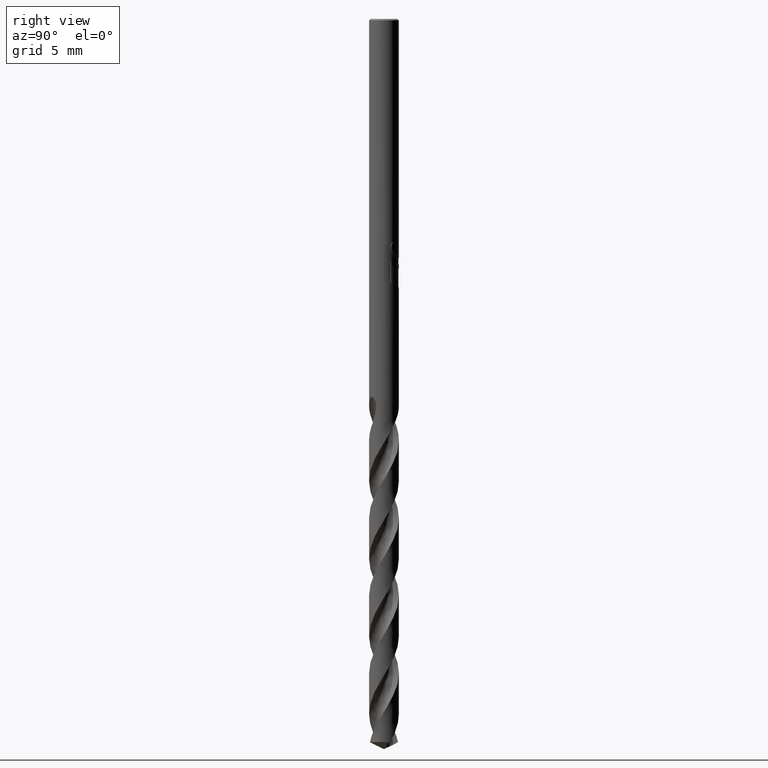
[diagram: clean part render]
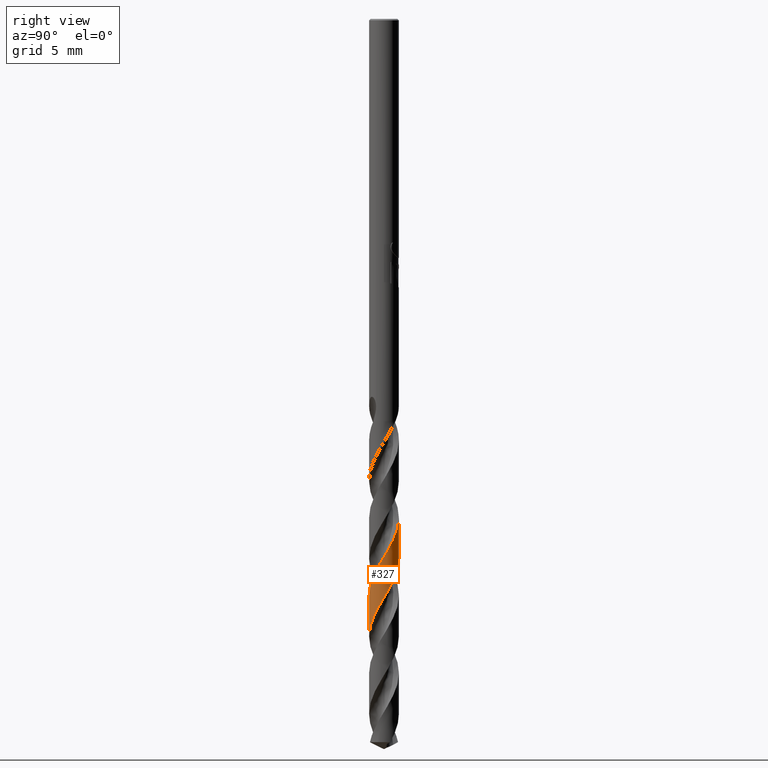
[diagram: same view with one face highlighted and labeled with its STEP entity id]
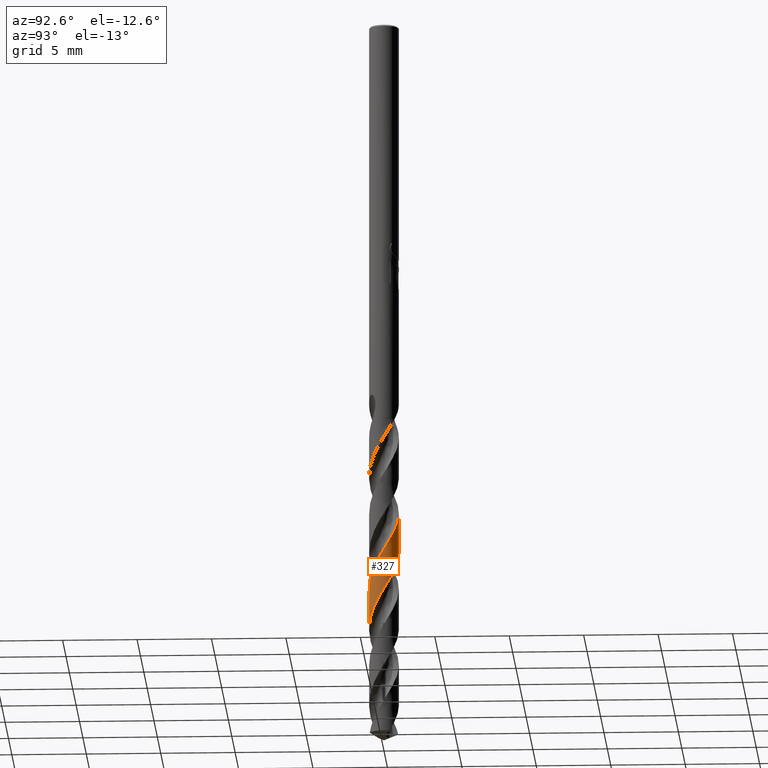
[diagram: same view with one face highlighted and labeled with its STEP entity id]
A machine part, right view. The second image highlights one B-rep face of the part: STEP entity #327.
A second angle (auxiliary view) of the same face is appended — the face is thin or edge-on in the first view.
In plain terms, the highlighted conical surface has half-angle 0 deg.
Its self-contained STEP definition (entity closure, byte-faithful):
#327=ADVANCED_FACE('',(#859),#860,.T.);
#399=EDGE_CURVE('',#481,#441,#937,.T.);
#441=VERTEX_POINT('',#985);
#481=VERTEX_POINT('',#1028);
#485=VERTEX_POINT('',#1032);
#549=VERTEX_POINT('',#1101);
#573=EDGE_CURVE('',#481,#549,#1128,.T.);
#791=EDGE_CURVE('',#485,#549,#1367,.T.);
#797=EDGE_CURVE('',#485,#441,#1374,.T.);
#859=FACE_OUTER_BOUND('',#1819,.T.);
#860=CONICAL_SURFACE('',#1820,0.99995,4.64388542437503E-006);
#937=LINE('',#2342,#2343);
#985=CARTESIAN_POINT('',(3.2694122069762E-015,0.999942858485698,-36.2290144527793));
#1028=CARTESIAN_POINT('',(1.88454613494366E-013,0.999930121111802,-33.4861875452947));
#1032=CARTESIAN_POINT('',(1.12027190284286E-013,-0.999967028578083,-41.4337277855306));
#1101=CARTESIAN_POINT('',(4.74677206223948E-014,-0.999954290792756,-38.6908122819593));
#1128=B_SPLINE_CURVE_WITH_KNOTS('',3,(#4186,#4187,#4188,#4189,#4190,#4191,#4192,#4193,#4194,#4195,#4196,#4197,#4198,#4199,#4200,#4201,#4202,#4203,#4204,#4205,#4206,#4207,#4208,#4209,#4210,#4211,#4212,#4213,#4214,#4215,#4216,#4217,#4218,#4219,#4220,#4221,#4222,#4223,#4224,#4225,#4226,#4227,#4228,#4229,#4230,#4231,#4232,#4233,#4234,#4235,#4236,#4237,#4238,#4239,#4240,#4241,#4242,#4243,#4244,#4245,#4246,#4247,#4248,#4249,#4250,#4251,#4252,#4253,#4254,#4255,#4256,#4257,#4258,#4259,#4260,#4261,#4262,#4263,#4264,#4265,#4266,#4267,#4268,#4269,#4270,#4271,#4272,#4273,#4274,#4275,#4276,#4277,#4278,#4279,#4280,#4281,#4282,#4283,#4284,#4285,#4286,#4287,#4288,#4289,#4290,#4291,#4292,#4293,#4294,#4295,#4296,#4297,#4298,#4299,#4300,#4301,#4302,#4303,#4304,#4305,#4306,#4307,#4308,#4309,#4310,#4311,#4312,#4313,#4314,#4315,#4316,#4317,#4318,#4319,#4320,#4321,#4322,#4323,#4324,#4325,#4326,#4327,#4328,#4329,#4330,#4331,#4332,#4333,#4334,#4335,#4336,#4337,#4338,#4339,#4340,#4341,#4342,#4343,#4344,#4345,#4346,#4347,#4348,#4349,#4350,#4351,#4352,#4353,#4354,#4355,#4356,#4357,#4358,#4359,#4360,#4361,#4362,#4363,#4364,#4365,#4366,#4367),.UNSPECIFIED.,.F.,.F.,(4,2,2,2,2,2,2,2,2,2,2,2,2,2,2,2,2,2,2,2,2,2,2,2,2,2,2,2,2,2,2,2,2,2,2,2,2,2,2,2,2,2,2,2,2,2,2,2,2,2,2,2,2,2,2,2,2,2,2,2,2,2,2,2,2,2,2,2,2,2,2,2,2,2,2,2,2,2,2,2,2,2,2,2,2,2,2,2,2,2,4),(0.0,0.0713269601819697,0.0905710916270879,0.0994977567872169,0.105323863655188,0.109921420017228,0.113515126888498,0.116301397942807,0.118447032461008,0.120090198578866,0.121342986047786,0.122294792274173,0.123015947930826,0.123561187768846,0.248367893880194,0.277229466000403,0.292910009426252,0.30600767386441,0.3214522607903,0.349238357147253,0.383452646727553,0.427609564093689,0.570897118002581,0.636246574252031,0.684174423014365,0.735698421260627,0.789260267415907,0.81131759972586,0.984962029096713,1.1327929267432,1.28159851667474,1.68902860159217,2.31796412075668,2.41841501877328,2.79799637534962,2.97635031193131,3.28209467517689,3.76083076906517,4.06334416147802,4.51108468915605,4.8580677405522,5.34037111158665,5.62993529641255,6.1353572860451,6.41351422486365,6.91767140706241,7.19756426958303,7.70172759885737,7.98142313784275,8.48557361905437,8.76511137406633,9.26919198997926,9.54865258065268,10.0526467283384,10.3320534478802,10.8359577158333,11.1153130844471,11.6191208680897,11.8984311714862,12.4021343470943,12.6814102313245,13.1850157703575,13.4642388941019,13.9676710014995,14.2469511321292,14.7502622132765,15.029541124386,15.5328834492971,15.8119399062421,16.3151927767869,16.5942000448546,17.0973682803001,17.3763187818692,17.8793952378738,18.1582982440663,18.6612842054288,18.9401286542909,19.4429691102117,19.7218475381376,20.2247628769457,20.503336136759,21.0054359434781,21.2848789397577,21.7887460168441,22.0663086115092,22.5663603249983,22.8452317418266,23.3462919889471,23.6403530383056,24.0780458837696,24.5261732641234),.UNSPECIFIED.);
#1367=LINE('',#8097,#8098);
#1374=B_SPLINE_CURVE_WITH_KNOTS('',3,(#8107,#8108,#8109,#8110,#8111,#8112,#8113,#8114,#8115,#8116,#8117,#8118,#8119,#8120,#8121,#8122,#8123,#8124,#8125,#8126,#8127,#8128,#8129,#8130,#8131,#8132,#8133,#8134,#8135,#8136,#8137,#8138,#8139,#8140,#8141,#8142,#8143,#8144,#8145,#8146,#8147,#8148,#8149,#8150,#8151,#8152,#8153,#8154,#8155,#8156,#8157,#8158,#8159,#8160,#8161,#8162,#8163,#8164,#8165,#8166,#8167,#8168,#8169,#8170,#8171,#8172,#8173,#8174,#8175,#8176,#8177,#8178,#8179,#8180,#8181,#8182,#8183,#8184,#8185,#8186,#8187,#8188,#8189,#8190,#8191,#8192,#8193,#8194,#8195,#8196,#8197,#8198,#8199,#8200,#8201,#8202,#8203,#8204,#8205,#8206,#8207,#8208,#8209,#8210,#8211,#8212,#8213,#8214,#8215,#8216,#8217,#8218,#8219,#8220,#8221,#8222,#8223,#8224,#8225,#8226,#8227,#8228,#8229,#8230,#8231,#8232,#8233,#8234,#8235,#8236,#8237,#8238,#8239,#8240,#8241,#8242,#8243,#8244,#8245,#8246,#8247,#8248,#8249,#8250,#8251,#8252,#8253,#8254,#8255,#8256,#8257,#8258,#8259,#8260,#8261,#8262),.UNSPECIFIED.,.F.,.F.,(4,2,2,2,2,2,2,2,2,2,2,2,2,2,2,2,2,2,2,2,2,2,2,2,2,2,2,2,2,2,2,2,2,2,2,2,2,2,2,2,2,2,2,2,2,2,2,2,2,2,2,2,2,2,2,2,2,2,2,2,2,2,2,2,2,2,2,2,2,2,2,2,2,2,2,2,2,4),(0.0,0.361337162358651,0.976261301621345,1.16450964750944,1.54466752896627,1.72683408805702,1.94261804372654,2.59464719311648,2.7780077590204,3.47848981696616,3.51889130967177,4.09321758849543,4.65649380182203,5.0211955774257,5.21316606620941,5.90264294853887,5.98616322981781,6.59712065386963,6.98105240158372,7.36536257410904,7.90099208785729,8.26598518861249,8.46778792458857,9.14374286020563,9.31837402904016,9.69555881324705,9.87951470064028,10.0951139637905,10.7567282047237,10.9417833240378,11.6539839763677,11.694043290051,12.2812228461076,12.8098366348659,13.1756983496491,13.3809290637778,14.0550604000254,14.232584978733,14.6065297668478,14.7912211419147,15.2284485220928,15.5930271580862,16.0537779938503,16.4185914419901,16.8038266224331,17.1896426989053,17.7217320149239,18.088007396766,18.2924417958026,18.9683606525162,19.1452951672735,19.5207612398612,19.705569676226,20.1399859353817,20.5047986664931,20.9671630822542,21.3322119772709,21.7177096417717,22.1039864363774,22.6419683606263,23.0088673649243,23.199937020237,23.819350677364,24.5415220028726,24.665788964548,24.7300136118964,24.871742395939,24.9503222541145,25.0588072825318,25.1229038777542,25.2113486567948,25.2584903850313,25.288374773489,25.3162249039462,25.3531633528251,25.4344278810098,25.545848208802,25.7616031512104),.UNSPECIFIED.);
#1819=EDGE_LOOP('',(#8282,#8283,#8284,#8285));
#1820=AXIS2_PLACEMENT_3D('',#8286,#8287,#8288);
#2342=CARTESIAN_POINT('',(-1.22514608352923E-016,0.99995,-37.7668461709225));
#2343=VECTOR('',#8367,1.0);
#4186=CARTESIAN_POINT('',(0.695006638995518,-0.718864262699409,-27.005));
#4187=CARTESIAN_POINT('',(0.68661385403181,-0.726978642211757,-27.025712307935));
#4188=CARTESIAN_POINT('',(0.67803769674747,-0.734987081258053,-27.046426793997));
#4189=CARTESIAN_POINT('',(0.666847238321297,-0.745067572075218,-27.0727072525305));
#4190=CARTESIAN_POINT('',(0.664454498908236,-0.747202313424329,-27.0782851910394));
#4191=CARTESIAN_POINT('',(0.660926712964626,-0.750319210762235,-27.0864464125013));
#4192=CARTESIAN_POINT('',(0.659805405505791,-0.751305463468879,-27.0890313066126));
#4193=CARTESIAN_POINT('',(0.657946222910602,-0.752933328124064,-27.0933018719904));
#4194=CARTESIAN_POINT('',(0.657210507235991,-0.753575607824298,-27.094987885474));
#4195=CARTESIAN_POINT('',(0.65589143273572,-0.75472375314161,-27.0980036739726));
#4196=CARTESIAN_POINT('',(0.655308688839857,-0.755229800316371,-27.0993335345369));
#4197=CARTESIAN_POINT('',(0.654268710059354,-0.756130791570111,-27.1017024292042));
#4198=CARTESIAN_POINT('',(0.653811866510605,-0.7565258571348,-27.1027415324557));
#4199=CARTESIAN_POINT('',(0.652999769043545,-0.757226850030646,-27.1045859836454));
#4200=CARTESIAN_POINT('',(0.652644758441122,-0.757532855974168,-27.1053913818741));
#4201=CARTESIAN_POINT('',(0.652015731311888,-0.758074282960251,-27.1068168184576));
#4202=CARTESIAN_POINT('',(0.651741863125853,-0.758309753418242,-27.1074368909009));
#4203=CARTESIAN_POINT('',(0.651257887648401,-0.758725416897336,-27.1085317188976));
#4204=CARTESIAN_POINT('',(0.651047869336969,-0.758905640236207,-27.1090064964264));
#4205=CARTESIAN_POINT('',(0.650677509316309,-0.759223190838712,-27.1098431914856));
#4206=CARTESIAN_POINT('',(0.650517220199958,-0.759360536407783,-27.1102051228512));
#4207=CARTESIAN_POINT('',(0.6502350242402,-0.759602184272677,-27.1108419944345));
#4208=CARTESIAN_POINT('',(0.650113148195714,-0.75970649741254,-27.1111169430277));
#4209=CARTESIAN_POINT('',(0.649898856995889,-0.759889818899181,-27.1116001903487));
#4210=CARTESIAN_POINT('',(0.649806459765248,-0.759968833557704,-27.111808493957));
#4211=CARTESIAN_POINT('',(0.649644162305223,-0.760107573030683,-27.1121742758672));
#4212=CARTESIAN_POINT('',(0.64957427233219,-0.760167301575835,-27.1123317572128));
#4213=CARTESIAN_POINT('',(0.63350325640473,-0.773897888389345,-27.1485361515594));
#4214=CARTESIAN_POINT('',(0.617024903934439,-0.787115942832237,-27.1837980318291));
#4215=CARTESIAN_POINT('',(0.595676487185673,-0.803116899226939,-27.227495536344));
#4216=CARTESIAN_POINT('',(0.591635165491945,-0.806098882372369,-27.2356871346763));
#4217=CARTESIAN_POINT('',(0.585344393202791,-0.810667471060172,-27.2483262730532));
#4218=CARTESIAN_POINT('',(0.583120784441458,-0.812268449955818,-27.2527726251665));
#4219=CARTESIAN_POINT('',(0.579022586006081,-0.81519355332266,-27.2609311448847));
#4220=CARTESIAN_POINT('',(0.57715139355514,-0.816519445587559,-27.2646425020813));
#4221=CARTESIAN_POINT('',(0.573060264974094,-0.81939721815624,-27.2727289819635));
#4222=CARTESIAN_POINT('',(0.570838644183973,-0.820946510526902,-27.2771024429194));
#4223=CARTESIAN_POINT('',(0.564597650482427,-0.82526115356868,-27.2893431280875));
#4224=CARTESIAN_POINT('',(0.560563521819792,-0.828006735198923,-27.2972032011297));
#4225=CARTESIAN_POINT('',(0.55151104788879,-0.83407113115344,-27.3147470233785));
#4226=CARTESIAN_POINT('',(0.54648764515258,-0.837371108791689,-27.3244189366557));
#4227=CARTESIAN_POINT('',(0.53491775742037,-0.84482326370661,-27.3465969807599));
#4228=CARTESIAN_POINT('',(0.528325200606596,-0.848962817220155,-27.3591706871165));
#4229=CARTESIAN_POINT('',(0.499800201244307,-0.8664045511247,-27.4135548726434));
#4230=CARTESIAN_POINT('',(0.477637680866647,-0.878806294695486,-27.4555530386341));
#4231=CARTESIAN_POINT('',(0.444994252730331,-0.895498072904731,-27.5165214679971));
#4232=CARTESIAN_POINT('',(0.434690015950136,-0.900544799392699,-27.5356434468558));
#4233=CARTESIAN_POINT('',(0.416700484274716,-0.908975608128091,-27.568774228562));
#4234=CARTESIAN_POINT('',(0.409043845305691,-0.912446836062991,-27.5827974222193));
#4235=CARTESIAN_POINT('',(0.393066478867106,-0.91944880927859,-27.6118848178063));
#4236=CARTESIAN_POINT('',(0.384734730733688,-0.922966367988548,-27.6269559961611));
#4237=CARTESIAN_POINT('',(0.367634766665317,-0.92991359787853,-27.6576776567945));
#4238=CARTESIAN_POINT('',(0.358859064113769,-0.933335619536552,-27.6733333368576));
#4239=CARTESIAN_POINT('',(0.346386793523603,-0.937996663791301,-27.695421319449));
#4240=CARTESIAN_POINT('',(0.342734865368048,-0.939337257471522,-27.7018703828516));
#4241=CARTESIAN_POINT('',(0.310254540532954,-0.951045565708302,-27.7590952926862));
#4242=CARTESIAN_POINT('',(0.280944835211464,-0.960114403123078,-27.8097579326065));
#4243=CARTESIAN_POINT('',(0.225942337243639,-0.974392789905163,-27.9036928981565));
#4244=CARTESIAN_POINT('',(0.200418897408153,-0.979960254313813,-27.9468437266453));
#4245=CARTESIAN_POINT('',(0.148859418103593,-0.989110976364603,-28.0335647820357));
#4246=CARTESIAN_POINT('',(0.122845909870407,-0.992676501352271,-28.0771137562336));
#4247=CARTESIAN_POINT('',(0.0252774701986015,-1.00216182889511,-28.2397617121093));
#4248=CARTESIAN_POINT('',(-0.0467565641687645,-1.00139405859593,-28.3583404228731));
#4249=CARTESIAN_POINT('',(-0.22826044211912,-0.979804565666817,-28.6612893982229));
#4250=CARTESIAN_POINT('',(-0.335513436016229,-0.948456720035634,-28.843812764857));
#4251=CARTESIAN_POINT('',(-0.451401010880476,-0.892395971904352,-29.0569619279778));
#4252=CARTESIAN_POINT('',(-0.467144408774423,-0.884256368218147,-29.0863053956189));
#4253=CARTESIAN_POINT('',(-0.541287101215247,-0.84339213975658,-29.2266513660983));
#4254=CARTESIAN_POINT('',(-0.596539195501429,-0.805262522958345,-29.3375815281084));
#4255=CARTESIAN_POINT('',(-0.671545132590101,-0.741512348517927,-29.5007123735742));
#4256=CARTESIAN_POINT('',(-0.694556872321354,-0.720004422439003,-29.5528137155175));
#4257=CARTESIAN_POINT('',(-0.754182190667601,-0.658748149963413,-29.694310201076));
#4258=CARTESIAN_POINT('',(-0.788619461674859,-0.617100801205189,-29.783417052406));
#4259=CARTESIAN_POINT('',(-0.867898535942722,-0.503696610690079,-30.0128453090115));
#4260=CARTESIAN_POINT('',(-0.907351828502397,-0.428591136037289,-30.1524191759103));
#4261=CARTESIAN_POINT('',(-0.955561278080989,-0.299313210172448,-30.3808168335681));
#4262=CARTESIAN_POINT('',(-0.970173983743438,-0.247875017228417,-30.4690203506921));
#4263=CARTESIAN_POINT('',(-0.996055150306137,-0.118092457889546,-30.6884876986749));
#4264=CARTESIAN_POINT('',(-1.00228071834755,-0.0390260257806472,-30.8191286827137));
#4265=CARTESIAN_POINT('',(-0.996667345684485,0.101232002698322,-31.0515132258921));
#4266=CARTESIAN_POINT('',(-0.988594039830041,0.162073337882402,-31.1526169367462));
#4267=CARTESIAN_POINT('',(-0.956147233797371,0.304735117735871,-31.3952455756088));
#4268=CARTESIAN_POINT('',(-0.926747514144879,0.38502233592601,-31.5358818607005));
#4269=CARTESIAN_POINT('',(-0.863923896150151,0.50606026469121,-31.7616094642389));
#4270=CARTESIAN_POINT('',(-0.83692327520317,0.549559187969704,-31.8460800627501));
#4271=CARTESIAN_POINT('',(-0.75404062382053,0.662739918657729,-32.0787091004791));
#4272=CARTESIAN_POINT('',(-0.691913757867484,0.727379542221887,-32.226069285575));
#4273=CARTESIAN_POINT('',(-0.583494218630799,0.813511696052745,-32.4552611673272));
#4274=CARTESIAN_POINT('',(-0.542833474918317,0.84118568034613,-32.5364354422419));
#4275=CARTESIAN_POINT('',(-0.423288321319923,0.910273610444257,-32.7653974298516));
#4276=CARTESIAN_POINT('',(-0.340587988108863,0.94434889072963,-32.9124209561387));
#4277=CARTESIAN_POINT('',(-0.206571945313504,0.979608249442131,-33.141792847058));
#4278=CARTESIAN_POINT('',(-0.157897352352675,0.988618938284406,-33.223485971221));
#4279=CARTESIAN_POINT('',(-0.0203130685184656,1.00367718996004,-33.4529998501041));
#4280=CARTESIAN_POINT('',(0.0691237057579506,1.00151206544744,-33.6000516313226));
#4281=CARTESIAN_POINT('',(0.205970533240288,0.979736834783418,-33.8294094771767));
#4282=CARTESIAN_POINT('',(0.254120981295556,0.968362198522043,-33.911060173703));
#4283=CARTESIAN_POINT('',(0.386087318627187,0.926674700464012,-34.1405544027071));
#4284=CARTESIAN_POINT('',(0.467072050680587,0.888626536304013,-34.2876289209363));
#4285=CARTESIAN_POINT('',(0.583517199968223,0.813523407368512,-34.5169785833891));
#4286=CARTESIAN_POINT('',(0.622979269151588,0.783711801255956,-34.5985982369398));
#4287=CARTESIAN_POINT('',(0.726927338200622,0.692367810542888,-34.8280675463587));
#4288=CARTESIAN_POINT('',(0.785701349258503,0.624895146850936,-34.9751483406847));
#4289=CARTESIAN_POINT('',(0.861982995435997,0.509218927354088,-35.2044966288995));
#4290=CARTESIAN_POINT('',(0.8860744175168,0.466031575761866,-35.2861085982211));
#4291=CARTESIAN_POINT('',(0.944372330298245,0.34053495395759,-35.5155716405657));
#4292=CARTESIAN_POINT('',(0.970955835760043,0.255092016330968,-35.662653894543));
#4293=CARTESIAN_POINT('',(0.994126654103455,0.11847847309663,-35.8920027157395));
#4294=CARTESIAN_POINT('',(0.998761692070721,0.0692440528344261,-35.9736137501029));
#4295=CARTESIAN_POINT('',(1.00151590511254,-0.0691053974111301,-36.2030763104835));
#4296=CARTESIAN_POINT('',(0.9913954827486,-0.158014807741282,-36.3501590201428));
#4297=CARTESIAN_POINT('',(0.957521598050235,-0.292376023873197,-36.5795080984473));
#4298=CARTESIAN_POINT('',(0.941913571040333,-0.339300572067074,-36.661118927593));
#4299=CARTESIAN_POINT('',(0.888656390357804,-0.467017972337992,-36.8905798093526));
#4300=CARTESIAN_POINT('',(0.843550014202077,-0.544300793965755,-37.0376610732076));
#4301=CARTESIAN_POINT('',(0.758381059931685,-0.65360234366086,-37.2670103364098));
#4302=CARTESIAN_POINT('',(0.72517856680498,-0.690252565725879,-37.3486227959841));
#4303=CARTESIAN_POINT('',(0.624950636554854,-0.78565813725618,-37.5780814969943));
#4304=CARTESIAN_POINT('',(0.552516518786696,-0.838195388190812,-37.7251590040931));
#4305=CARTESIAN_POINT('',(0.430508887300119,-0.903884197470448,-37.9545092495916));
#4306=CARTESIAN_POINT('',(0.385345493384793,-0.924039012248415,-38.0361264650544));
#4307=CARTESIAN_POINT('',(0.255157655705782,-0.970939146377756,-38.2655882097981));
#4308=CARTESIAN_POINT('',(0.167690782960404,-0.989814149973515,-38.4126639878196));
#4309=CARTESIAN_POINT('',(0.029555870352993,-1.00073840680356,-38.6420119560141));
#4310=CARTESIAN_POINT('',(-0.0198998684337635,-1.00097432639876,-38.7236286074364));
#4311=CARTESIAN_POINT('',(-0.15793233490968,-0.991407825765872,-38.9530659129656));
#4312=CARTESIAN_POINT('',(-0.245571595212108,-0.973422143133293,-39.1001182361533));
#4313=CARTESIAN_POINT('',(-0.376393467216838,-0.927732259508044,-39.3294740153561));
#4314=CARTESIAN_POINT('',(-0.421764814095414,-0.908002380233393,-39.4111220807416));
#4315=CARTESIAN_POINT('',(-0.544236830477803,-0.843589860298977,-39.6405825839698));
#4316=CARTESIAN_POINT('',(-0.617182278048314,-0.791800224681556,-39.7876265988923));
#4317=CARTESIAN_POINT('',(-0.718483475685568,-0.697243102934419,-40.0169884888255));
#4318=CARTESIAN_POINT('',(-0.752055330339136,-0.660888737658764,-40.0986510860156));
#4319=CARTESIAN_POINT('',(-0.838180636494545,-0.552540576184522,-40.3281622785925));
#4320=CARTESIAN_POINT('',(-0.884062430249606,-0.475715771959531,-40.4752417088994));
#4321=CARTESIAN_POINT('',(-0.938629414128632,-0.348345616975112,-40.7045892842172));
#4322=CARTESIAN_POINT('',(-0.954683311524273,-0.301569763284009,-40.7862019430302));
#4323=CARTESIAN_POINT('',(-0.989809703197384,-0.167723358960355,-41.0156633924273));
#4324=CARTESIAN_POINT('',(-1.00082464969021,-0.0789202801391335,-41.1627434286519));
#4325=CARTESIAN_POINT('',(-0.999409480569259,0.0596403207926915,-41.3920920293967));
#4326=CARTESIAN_POINT('',(-0.995242495028284,0.108919037267946,-41.4737051086615));
#4327=CARTESIAN_POINT('',(-0.973425260108244,0.245569351223017,-41.7031689662778));
#4328=CARTESIAN_POINT('',(-0.947702510856066,0.331277850090548,-41.8502509555123));
#4329=CARTESIAN_POINT('',(-0.890543999499203,0.457508430465675,-42.0795997244591));
#4330=CARTESIAN_POINT('',(-0.866863575608479,0.5009239701347,-42.1612110053325));
#4331=CARTESIAN_POINT('',(-0.791805695467627,0.617180064662353,-42.3906729247738));
#4332=CARTESIAN_POINT('',(-0.733711216535013,0.685244015512019,-42.5377547968876));
#4333=CARTESIAN_POINT('',(-0.630511304322532,0.77771751788772,-42.7671043547707));
#4334=CARTESIAN_POINT('',(-0.591336417875305,0.80790159488269,-42.848716543631));
#4335=CARTESIAN_POINT('',(-0.475777228728779,0.884030546844978,-43.078179622716));
#4336=CARTESIAN_POINT('',(-0.395171778733074,0.922896125875588,-43.2252617253612));
#4337=CARTESIAN_POINT('',(-0.263449121407795,0.965914008344514,-43.4546092148036));
#4338=CARTESIAN_POINT('',(-0.215431103921491,0.977742017440168,-43.5362190722323));
#4339=CARTESIAN_POINT('',(-0.0789975079176803,1.0008187229969,-43.7656639832097));
#4340=CARTESIAN_POINT('',(0.0104265636365723,1.00388944120571,-43.9127305687412));
#4341=CARTESIAN_POINT('',(0.148319139578709,0.990153841150157,-44.142087117485));
#4342=CARTESIAN_POINT('',(0.197045455926891,0.981616516648528,-44.2237217071349));
#4343=CARTESIAN_POINT('',(0.331246369919816,0.94771633658129,-44.4532403033856));
#4344=CARTESIAN_POINT('',(0.414344818707884,0.91445764560933,-44.6003547402875));
#4345=CARTESIAN_POINT('',(0.534976076218883,0.84628939253725,-44.8296854350062));
#4346=CARTESIAN_POINT('',(0.576086325419867,0.818855532116551,-44.9112458189484));
#4347=CARTESIAN_POINT('',(0.685096005628141,0.73383747897381,-45.1404774184931));
#4348=CARTESIAN_POINT('',(0.747656297059521,0.670005973779884,-45.2873833232459));
#4349=CARTESIAN_POINT('',(0.830633364833717,0.558995431158168,-45.5167720415501));
#4350=CARTESIAN_POINT('',(0.857289403994263,0.517182018244766,-45.598600595782));
#4351=CARTESIAN_POINT('',(0.922995482296829,0.394991723880156,-45.8286483186029));
#4352=CARTESIAN_POINT('',(0.954581781762304,0.31102525893201,-45.9760912465935));
#4353=CARTESIAN_POINT('',(0.985619152589755,0.175945689439511,-46.205488973661));
#4354=CARTESIAN_POINT('',(0.993077872169554,0.127252037041277,-46.2867862260859));
#4355=CARTESIAN_POINT('',(1.00385583205729,-0.0100771925438394,-46.5152028008145));
#4356=CARTESIAN_POINT('',(0.99902628139844,-0.0989892446730128,-46.6615649695789));
#4357=CARTESIAN_POINT('',(0.973303925603856,-0.234759032046376,-46.8902649473714));
#4358=CARTESIAN_POINT('',(0.960507778365458,-0.282580413757741,-46.9719482441777));
#4359=CARTESIAN_POINT('',(0.915011923721736,-0.413064520363471,-47.2010907413932));
#4360=CARTESIAN_POINT('',(0.874727209394728,-0.492690371212382,-47.3478015301833));
#4361=CARTESIAN_POINT('',(0.794886776867865,-0.608989318700799,-47.5813187054962));
#4362=CARTESIAN_POINT('',(0.762055337277263,-0.649599809696101,-47.6674894122972));
#4363=CARTESIAN_POINT('',(0.672898425290249,-0.743787270307274,-47.8824946878437));
#4364=CARTESIAN_POINT('',(0.613155352846574,-0.793769904446616,-48.010710150257));
#4365=CARTESIAN_POINT('',(0.481661672700889,-0.879957825368331,-48.2708583762053));
#4366=CARTESIAN_POINT('',(0.410274532501562,-0.915403347368213,-48.4019326123564));
#4367=CARTESIAN_POINT('',(0.335565590940084,-0.942016843892418,-48.533692341845));
#8097=CARTESIAN_POINT('',(1.22394416348014E-016,-0.99995,-37.7668461709225));
#8098=VECTOR('',#8861,1.0);
#8107=CARTESIAN_POINT('',(0.909974226507982,0.414664812940762,-48.533692341845));
#8108=CARTESIAN_POINT('',(0.884089494360212,0.471467223037622,-48.4306843882466));
#8109=CARTESIAN_POINT('',(0.853053246550382,0.525462362805797,-48.3268818714906));
#8110=CARTESIAN_POINT('',(0.756972308534247,0.661838188784407,-48.0490514679632));
#8111=CARTESIAN_POINT('',(0.683280620848955,0.737696812678099,-47.8775501043395));
#8112=CARTESIAN_POINT('',(0.573214396989906,0.820033516434332,-47.6493926017337));
#8113=CARTESIAN_POINT('',(0.546546819828017,0.838042470181231,-47.5957418752028));
#8114=CARTESIAN_POINT('',(0.463421864928407,0.88851580325021,-47.4342683069033));
#8115=CARTESIAN_POINT('',(0.404571039337679,0.916827937610988,-47.3270545420463));
#8116=CARTESIAN_POINT('',(0.313866438639934,0.949975737600897,-47.1675850046423));
#8117=CARTESIAN_POINT('',(0.284035193109548,0.95931443188844,-47.1159879301751));
#8118=CARTESIAN_POINT('',(0.218113610382269,0.976615566688474,-47.003018920271));
#8119=CARTESIAN_POINT('',(0.181961647464726,0.983985421889499,-46.9415125625582));
#8120=CARTESIAN_POINT('',(0.0356541784824296,1.00551352499258,-46.695535587964));
#8121=CARTESIAN_POINT('',(-0.0761688677625725,1.00326049694881,-46.5146005183886));
#8122=CARTESIAN_POINT('',(-0.216094545665403,0.976861825159557,-46.2781262547053));
#8123=CARTESIAN_POINT('',(-0.246452994326141,0.969646611243719,-46.2260504875078));
#8124=CARTESIAN_POINT('',(-0.391102968955657,0.928032876624254,-45.9759093129329));
#8125=CARTESIAN_POINT('',(-0.498726596448284,0.87487170260708,-45.7823696084837));
#8126=CARTESIAN_POINT('',(-0.599916917719322,0.800074544502787,-45.5727158962679));
#8127=CARTESIAN_POINT('',(-0.605380911198789,0.795948122492984,-45.5612919354364));
#8128=CARTESIAN_POINT('',(-0.68803121889452,0.732185310949256,-45.3873430468558));
#8129=CARTESIAN_POINT('',(-0.756271528320299,0.661531242212716,-45.2274402732479));
#8130=CARTESIAN_POINT('',(-0.869197680326105,0.503683164455298,-44.9064543024846));
#8131=CARTESIAN_POINT('',(-0.913550659929552,0.417900733402677,-44.746712000429));
#8132=CARTESIAN_POINT('',(-0.96536683243489,0.268155552322625,-44.4849566784987));
#8133=CARTESIAN_POINT('',(-0.980153374278453,0.207633223367262,-44.382721744009));
#8134=CARTESIAN_POINT('',(-0.994005104904793,0.11393319746018,-44.2255084744531));
#8135=CARTESIAN_POINT('',(-0.997187222452249,0.0814830925091862,-44.1711011115523));
#8136=CARTESIAN_POINT('',(-1.00450869778642,-0.0679956222031826,-43.9223316534729));
#8137=CARTESIAN_POINT('',(-0.989663446260882,-0.184864603007192,-43.7322128706781));
#8138=CARTESIAN_POINT('',(-0.950825078018388,-0.309976446229569,-43.5141555123556));
#8139=CARTESIAN_POINT('',(-0.946351802472142,-0.323375519054434,-43.4905802802541));
#8140=CARTESIAN_POINT('',(-0.906726656143309,-0.434184513682184,-43.2946526796291));
#8141=CARTESIAN_POINT('',(-0.856914595691953,-0.525762635407979,-43.1254171576909));
#8142=CARTESIAN_POINT('',(-0.754088857977702,-0.659965045249723,-42.8453690561629));
#8143=CARTESIAN_POINT('',(-0.709478315106673,-0.707706436019383,-42.7366318617825));
#8144=CARTESIAN_POINT('',(-0.611396366588224,-0.793982845440065,-42.520364774783));
#8145=CARTESIAN_POINT('',(-0.558214821309155,-0.832233511453268,-42.412975965935));
#8146=CARTESIAN_POINT('',(-0.422851392261031,-0.910735043769739,-42.1541046408079));
#8147=CARTESIAN_POINT('',(-0.338182395760909,-0.945457444870473,-42.0025562941367));
#8148=CARTESIAN_POINT('',(-0.189697569655275,-0.9837754477903,-41.7491842677896));
#8149=CARTESIAN_POINT('',(-0.128290187581763,-0.993638488733188,-41.6471408238945));
#8150=CARTESIAN_POINT('',(-0.0322763248892489,-1.00003329353809,-41.4875286492331));
#8151=CARTESIAN_POINT('',(0.0019180145352977,-1.00054777135822,-41.4304855061674));
#8152=CARTESIAN_POINT('',(0.150313333307237,-0.995195522326249,-41.1835823489034));
#8153=CARTESIAN_POINT('',(0.262945051744863,-0.971516331310279,-40.9976270851122));
#8154=CARTESIAN_POINT('',(0.396562179754408,-0.918442974889348,-40.7585776778453));
#8155=CARTESIAN_POINT('',(0.42347366920353,-0.906351282166742,-40.7093507292302));
#8156=CARTESIAN_POINT('',(0.506962333709165,-0.864290641865139,-40.5540721547749));
#8157=CARTESIAN_POINT('',(0.561248085809,-0.830085323600867,-40.4486998074236));
#8158=CARTESIAN_POINT('',(0.636732055550532,-0.771670134959896,-40.2910843533269));
#8159=CARTESIAN_POINT('',(0.660531726635527,-0.751395090567101,-40.2394799290603));
#8160=CARTESIAN_POINT('',(0.710016507364757,-0.705078778806076,-40.127140114922));
#8161=CARTESIAN_POINT('',(0.735262854740537,-0.678700359151643,-40.0662783886156));
#8162=CARTESIAN_POINT('',(0.83166716677419,-0.566321163098795,-39.8200122043473));
#8163=CARTESIAN_POINT('',(0.889648280604358,-0.47001769451552,-39.6381805457849));
#8164=CARTESIAN_POINT('',(0.941971463733787,-0.33701746164854,-39.4007872016563));
#8165=CARTESIAN_POINT('',(0.952019073302662,-0.307488524762283,-39.3487297978881));
#8166=CARTESIAN_POINT('',(0.994027343946051,-0.162051171944785,-39.0971634580896));
#8167=CARTESIAN_POINT('',(1.0062395233087,-0.0417626575099272,-38.9022939372569));
#8168=CARTESIAN_POINT('',(0.996409613485354,0.0843912069521112,-38.6913779295984));
#8169=CARTESIAN_POINT('',(0.995818688515814,0.0911009786034059,-38.6801416198227));
#8170=CARTESIAN_POINT('',(0.985454544641456,0.1965161498701,-38.5036726133678));
#8171=CARTESIAN_POINT('',(0.961121047268028,0.293371646413744,-38.3412226036954));
#8172=CARTESIAN_POINT('',(0.888217770764173,0.467982481320556,-38.0281512286113));
#8173=CARTESIAN_POINT('',(0.84272989780025,0.545674394715628,-37.8790091005694));
#8174=CARTESIAN_POINT('',(0.749133305938348,0.665248576246507,-37.6280933087084));
#8175=CARTESIAN_POINT('',(0.706427240385478,0.710418747989653,-37.5261036317923));
#8176=CARTESIAN_POINT('',(0.633784742246853,0.774222441838235,-37.3657571851199));
#8177=CARTESIAN_POINT('',(0.606567840809311,0.795719193825549,-37.3079131693405));
#8178=CARTESIAN_POINT('',(0.485591711204374,0.881486432805199,-37.0613154071079));
#8179=CARTESIAN_POINT('',(0.382387271821124,0.93090276407903,-36.8763839065312));
#8180=CARTESIAN_POINT('',(0.244310062673702,0.970101674479779,-36.6377887932084));
#8181=CARTESIAN_POINT('',(0.215214854009212,0.976969550711913,-36.5879015896443));
#8182=CARTESIAN_POINT('',(0.123751694514841,0.994262098797963,-36.4332688434616));
#8183=CARTESIAN_POINT('',(0.0606428188058975,1.0001131192224,-36.3291532640604));
#8184=CARTESIAN_POINT('',(-0.0340417230123512,0.999853135567626,-36.1728018579338));
#8185=CARTESIAN_POINT('',(-0.0652844150451228,0.998297355721437,-36.1211775537508));
#8186=CARTESIAN_POINT('',(-0.169937266226736,0.98816411613724,-35.9469523075618));
#8187=CARTESIAN_POINT('',(-0.242546615303983,0.972903989817246,-35.8237145475454));
#8188=CARTESIAN_POINT('',(-0.371588733529195,0.930386048470771,-35.5990663954131));
#8189=CARTESIAN_POINT('',(-0.428310180715135,0.905668609147476,-35.4975646928584));
#8190=CARTESIAN_POINT('',(-0.55065097633227,0.838295647299236,-35.2662479247661));
#8191=CARTESIAN_POINT('',(-0.614338441293445,0.792820929726373,-35.13633237469));
#8192=CARTESIAN_POINT('',(-0.71795563120837,0.69874033779253,-34.9049531259318));
#8193=CARTESIAN_POINT('',(-0.759753408809851,0.653038925332729,-34.8033521742042));
#8194=CARTESIAN_POINT('',(-0.836412053712219,0.55184852846422,-34.5930435474698));
#8195=CARTESIAN_POINT('',(-0.870584708507524,0.496195064980359,-34.4843590958002));
#8196=CARTESIAN_POINT('',(-0.927728434425124,0.378758592421883,-34.2681406846355));
#8197=CARTESIAN_POINT('',(-0.950494566122874,0.317331978232923,-34.1607474245143));
#8198=CARTESIAN_POINT('',(-0.990014974282548,0.166918142618039,-33.9034385665205));
#8199=CARTESIAN_POINT('',(-1.00103465070907,0.0770492455950147,-33.7534595651711));
#8200=CARTESIAN_POINT('',(-0.999023873863131,-0.0753052601924159,-33.5016880697996));
#8201=CARTESIAN_POINT('',(-0.992417964142506,-0.137126092834664,-33.3996780481426));
#8202=CARTESIAN_POINT('',(-0.973318757586883,-0.231741322684761,-33.2395847968705));
#8203=CARTESIAN_POINT('',(-0.964742305922791,-0.26517198652339,-33.1820187802591));
#8204=CARTESIAN_POINT('',(-0.920527709644766,-0.406760228085976,-32.9353596541455));
#8205=CARTESIAN_POINT('',(-0.868293803122399,-0.50879398105761,-32.7501144794314));
#8206=CARTESIAN_POINT('',(-0.782149447755558,-0.623683370603723,-32.5113863078873));
#8207=CARTESIAN_POINT('',(-0.763246079726744,-0.646681368978624,-32.4617078726733));
#8208=CARTESIAN_POINT('',(-0.700920391069234,-0.715940345496051,-32.3069274657546));
#8209=CARTESIAN_POINT('',(-0.654102398775433,-0.758974412867353,-32.2024697289327));
#8210=CARTESIAN_POINT('',(-0.578435276072199,-0.816234766559143,-32.0457729893493));
#8211=CARTESIAN_POINT('',(-0.552635402027187,-0.833915538846227,-31.9941528983745));
#8212=CARTESIAN_POINT('',(-0.463679822077986,-0.888949405383651,-31.8208048101417));
#8213=CARTESIAN_POINT('',(-0.397166740901212,-0.920604751025102,-31.6984451125142));
#8214=CARTESIAN_POINT('',(-0.269307333795046,-0.964951303128732,-31.4746714696068));
#8215=CARTESIAN_POINT('',(-0.209229546645439,-0.97972928695425,-31.3731735801454));
#8216=CARTESIAN_POINT('',(-0.0708949773828385,-1.00046276808817,-31.1414988136929));
#8217=CARTESIAN_POINT('',(0.00754242496001414,-1.00295360961156,-31.0112165557664));
#8218=CARTESIAN_POINT('',(0.147201313120076,-0.990954843478698,-30.779480720953));
#8219=CARTESIAN_POINT('',(0.208147535536893,-0.979959692363658,-30.6778863337236));
#8220=CARTESIAN_POINT('',(0.330460617558108,-0.945980591871597,-30.4675842672548));
#8221=CARTESIAN_POINT('',(0.391378039856513,-0.922448611734688,-30.358905270919));
#8222=CARTESIAN_POINT('',(0.508048217621754,-0.863707378988195,-30.1426339425));
#8223=CARTESIAN_POINT('',(0.563421462259031,-0.82865015770744,-30.0351809864229));
#8224=CARTESIAN_POINT('',(0.686801006565314,-0.73241082644817,-29.7762695081951));
#8225=CARTESIAN_POINT('',(0.750634195078341,-0.666850906120062,-29.6247674852163));
#8226=CARTESIAN_POINT('',(0.841675083673158,-0.543390861713215,-29.3713645549935));
#8227=CARTESIAN_POINT('',(0.873774670762421,-0.49008211961291,-29.2692701681791));
#8228=CARTESIAN_POINT('',(0.91470935872553,-0.405176822397218,-29.1128304768744));
#8229=CARTESIAN_POINT('',(0.927273082495096,-0.375521036057637,-29.0590653922633));
#8230=CARTESIAN_POINT('',(0.974345455781632,-0.247622023462064,-28.8321791611506));
#8231=CARTESIAN_POINT('',(0.994892594522991,-0.144703800378912,-28.6617680414531));
#8232=CARTESIAN_POINT('',(1.00400058111512,0.0816020572121059,-28.2871781668494));
#8233=CARTESIAN_POINT('',(0.986590599477612,0.202614466716231,-28.0848934754409));
#8234=CARTESIAN_POINT('',(0.941654847573566,0.336936890476224,-27.8513713031946));
#8235=CARTESIAN_POINT('',(0.93441236762907,0.356542124380978,-27.8171488194978));
#8236=CARTESIAN_POINT('',(0.92243180094115,0.386062856436546,-27.7653395472944));
#8237=CARTESIAN_POINT('',(0.91817492246875,0.396081971921985,-27.7477060545161));
#8238=CARTESIAN_POINT('',(0.903959014386001,0.428071058422741,-27.6912176255717));
#8239=CARTESIAN_POINT('',(0.893327312554285,0.449869654285635,-27.6525117639224));
#8240=CARTESIAN_POINT('',(0.875212883210277,0.483730821676132,-27.5894653710518));
#8241=CARTESIAN_POINT('',(0.86856728511051,0.495556638833195,-27.5669352973494));
#8242=CARTESIAN_POINT('',(0.852357895606559,0.523100676141701,-27.5130161679163));
#8243=CARTESIAN_POINT('',(0.842686170450361,0.538519505321207,-27.4816513977143));
#8244=CARTESIAN_POINT('',(0.826966873583227,0.562175309025351,-27.4312775065766));
#8245=CARTESIAN_POINT('',(0.821070574810007,0.57074709093723,-27.4125115377316));
#8246=CARTESIAN_POINT('',(0.80692710331719,0.590654339603673,-27.3676052089906));
#8247=CARTESIAN_POINT('',(0.801911748710978,0.597365527893177,-27.3513218028761));
#8248=CARTESIAN_POINT('',(0.792410105131761,0.609851612384467,-27.3223439600555));
#8249=CARTESIAN_POINT('',(0.789015448408146,0.61423890019822,-27.3123266818052));
#8250=CARTESIAN_POINT('',(0.783305975859288,0.621487992153097,-27.2960393121383));
#8251=CARTESIAN_POINT('',(0.781052074552661,0.624318621207282,-27.2897436204424));
#8252=CARTESIAN_POINT('',(0.776619039444266,0.629823053691726,-27.2776225021386));
#8253=CARTESIAN_POINT('',(0.774446027123069,0.632493461046445,-27.2717963369224));
#8254=CARTESIAN_POINT('',(0.769306980016836,0.638741303415175,-27.2582881517317));
#8255=CARTESIAN_POINT('',(0.766315000527285,0.642328617819599,-27.2506247138937));
#8256=CARTESIAN_POINT('',(0.756531988310398,0.653888260292171,-27.2262144314673));
#8257=CARTESIAN_POINT('',(0.74950279939677,0.661942761990452,-27.2096332011391));
#8258=CARTESIAN_POINT('',(0.732044508333043,0.681277734263687,-27.1707254494723));
#8259=CARTESIAN_POINT('',(0.721359249257233,0.692604967499916,-27.1486338912818));
#8260=CARTESIAN_POINT('',(0.688058054750378,0.726188431502526,-27.0847372157903));
#8261=CARTESIAN_POINT('',(0.663882457967811,0.748505431994001,-27.0443129749588));
#8262=CARTESIAN_POINT('',(0.637187381168949,0.770579196262958,-27.005));
#8282=ORIENTED_EDGE('',*,*,#399,.F.);
#8283=ORIENTED_EDGE('',*,*,#573,.T.);
#8284=ORIENTED_EDGE('',*,*,#791,.F.);
#8285=ORIENTED_EDGE('',*,*,#797,.T.);
#8286=CARTESIAN_POINT('',(0.0,0.0,-37.7668461709225));
#8287=DIRECTION('',(0.0,-0.0,-1.0));
#8288=DIRECTION('',(0.0,1.0,0.0));
#8367=DIRECTION('',(-5.68693159709234E-022,4.64388542435833E-006,-0.999999999989217));
#8861=DIRECTION('',(-5.68693159709234E-022,4.64388542435833E-006,0.999999999989217));